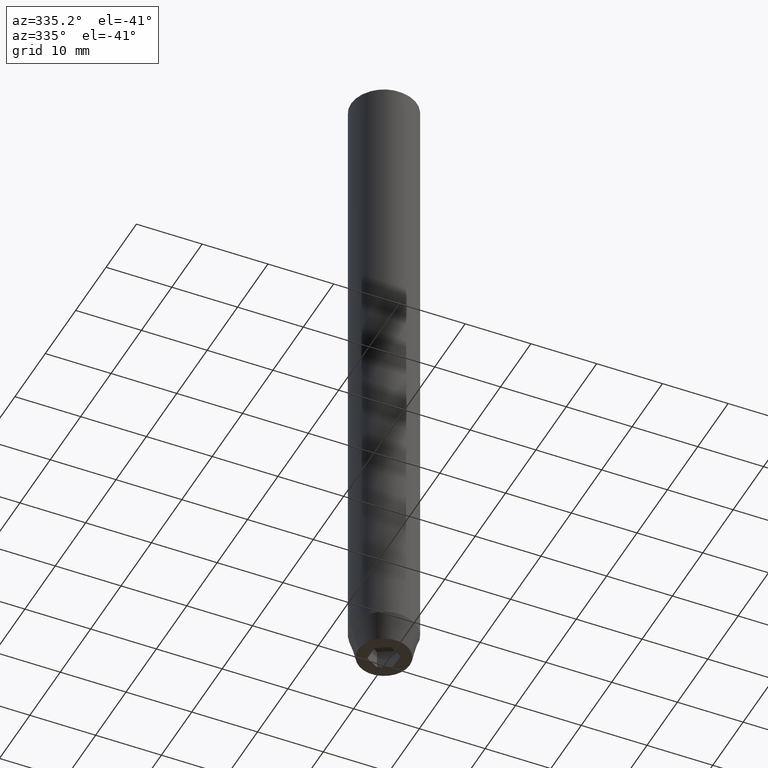
[diagram: clean part render]
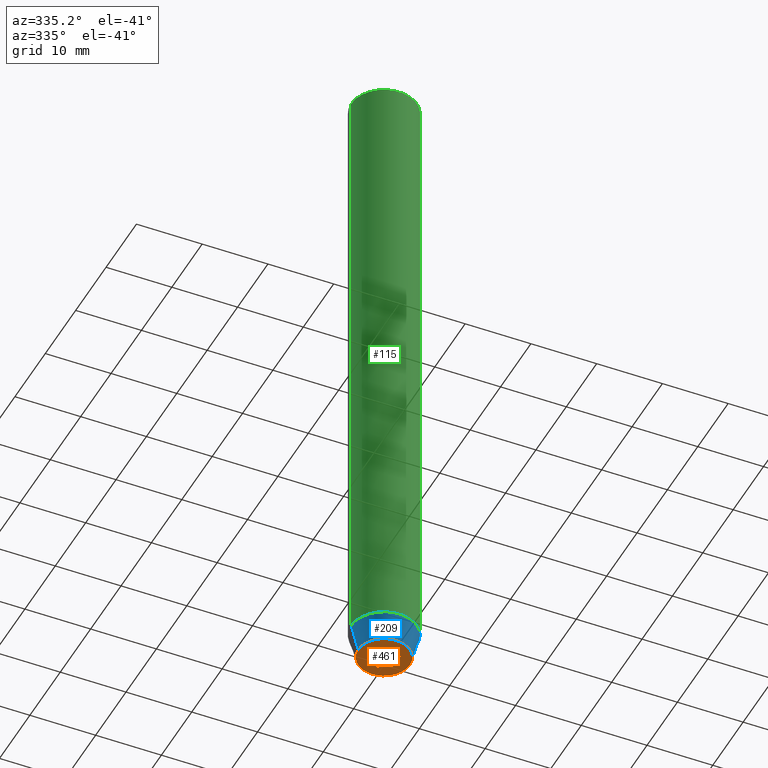
[diagram: same view with three faces highlighted in distinct colors, each labeled with its STEP entity id]
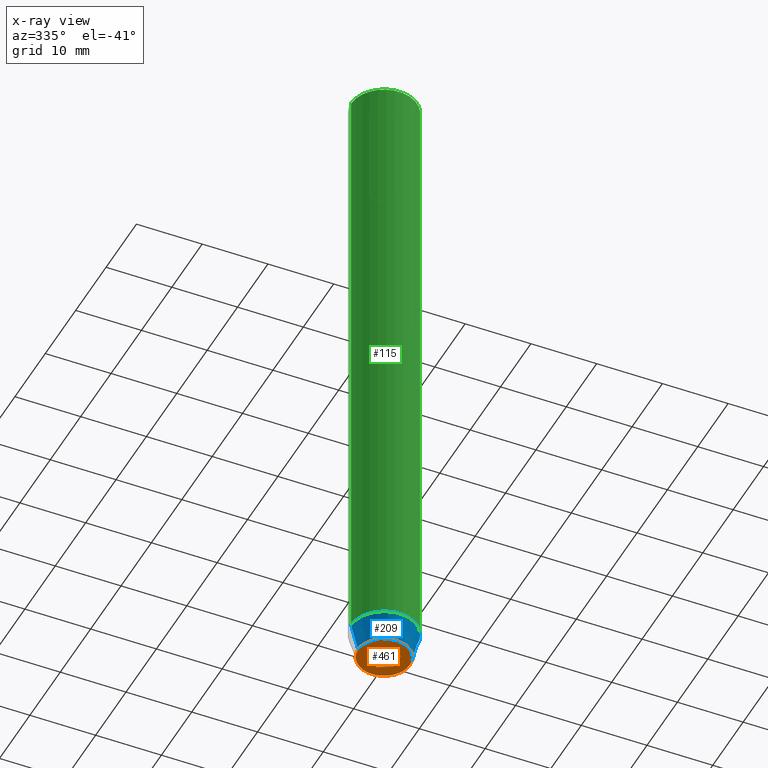
[diagram: x-ray of the same camera — body ghosted, the three highlighted faces saturated]
A machine part, auxiliary view with three faces highlighted in distinct colors.
The next image is the same camera in x-ray (body ghosted, the three faces saturated) — at least one of them is partly hidden behind the body in this view.
Their STEP definitions:

[orange] entity #461 — the highlighted planar face has unit normal (0, 0, -1).
#15 = EDGE_CURVE ( 'NONE', #587, #43, #141, .T. ) ;
#35 = VECTOR ( 'NONE', #37, 1000.000000000000000 ) ;
#37 = DIRECTION ( 'NONE',  ( 5.633679745264339711E-16, 1.000000000000000000, 0.000000000000000000 ) ) ;
#43 = VERTEX_POINT ( 'NONE', #534 ) ;
#46 = VECTOR ( 'NONE', #454, 999.9999999999998863 ) ;
#54 = DIRECTION ( 'NONE',  ( 0.000000000000000000, 0.000000000000000000, -1.000000000000000000 ) ) ;
#75 = CIRCLE ( 'NONE', #586, 3.928203230275506996 ) ;
#80 = ORIENTED_EDGE ( 'NONE', *, *, #15, .F. ) ;
#86 = EDGE_CURVE ( 'NONE', #416, #412, #214, .T. ) ;
#103 = ORIENTED_EDGE ( 'NONE', *, *, #514, .F. ) ;
#114 = VERTEX_POINT ( 'NONE', #130 ) ;
#128 = EDGE_CURVE ( 'NONE', #355, #416, #224, .T. ) ;
#130 = CARTESIAN_POINT ( 'NONE',  ( 0.000000000000000000, 2.309401076758503812, -100.0000000000000000 ) ) ;
#132 = CARTESIAN_POINT ( 'NONE',  ( -1.999999999999997780, 1.154700538379253238, -100.0000000000000000 ) ) ;
#141 = CIRCLE ( 'NONE', #471, 3.928203230275506996 ) ;
#145 = DIRECTION ( 'NONE',  ( -1.000000000000000000, 0.000000000000000000, -0.000000000000000000 ) ) ;
#155 = EDGE_CURVE ( 'NONE', #573, #114, #323, .T. ) ;
#156 = CARTESIAN_POINT ( 'NONE',  ( -1.999999999999998668, -1.154700538379252572, -100.0000000000000000 ) ) ;
#168 = LINE ( 'NONE', #498, #273 ) ;
#170 = AXIS2_PLACEMENT_3D ( 'NONE', #340, #54, #145 ) ;
#184 = DIRECTION ( 'NONE',  ( 0.8660254037844385966, -0.5000000000000001110, 0.000000000000000000 ) ) ;
#214 = LINE ( 'NONE', #487, #314 ) ;
#218 = LINE ( 'NONE', #502, #46 ) ;
#224 = LINE ( 'NONE', #584, #363 ) ;
#241 = DIRECTION ( 'NONE',  ( 1.000000000000000000, 0.000000000000000000, 0.000000000000000000 ) ) ;
#244 = DIRECTION ( 'NONE',  ( 1.000000000000000000, 0.000000000000000000, 0.000000000000000000 ) ) ;
#273 = VECTOR ( 'NONE', #184, 1000.000000000000000 ) ;
#276 = CARTESIAN_POINT ( 'NONE',  ( -1.000000000000000444, 1.732050807568877637, -100.0000000000000000 ) ) ;
#288 = CARTESIAN_POINT ( 'NONE',  ( 0.000000000000000000, 0.000000000000000000, -100.0000000000000000 ) ) ;
#304 = ORIENTED_EDGE ( 'NONE', *, *, #128, .F. ) ;
#310 = EDGE_LOOP ( 'NONE', ( #80, #103 ) ) ;
#314 = VECTOR ( 'NONE', #351, 1000.000000000000114 ) ;
#323 = LINE ( 'NONE', #276, #415 ) ;
#340 = CARTESIAN_POINT ( 'NONE',  ( 0.000000000000000000, 3.928203230275506996, -100.0000000000000000 ) ) ;
#349 = CARTESIAN_POINT ( 'NONE',  ( 3.928203230275506996, 0.000000000000000000, -100.0000000000000000 ) ) ;
#350 = EDGE_CURVE ( 'NONE', #114, #355, #168, .T. ) ;
#351 = DIRECTION ( 'NONE',  ( -0.8660254037844388186, -0.4999999999999996114, 0.000000000000000000 ) ) ;
#355 = VERTEX_POINT ( 'NONE', #402 ) ;
#356 = CARTESIAN_POINT ( 'NONE',  ( -1.999999999999998224, 1.126735949052866956E-15, -100.0000000000000000 ) ) ;
#363 = VECTOR ( 'NONE', #389, 1000.000000000000000 ) ;
#370 = ORIENTED_EDGE ( 'NONE', *, *, #350, .F. ) ;
#386 = EDGE_CURVE ( 'NONE', #481, #573, #410, .T. ) ;
#389 = DIRECTION ( 'NONE',  ( 0.000000000000000000, -1.000000000000000000, 0.000000000000000000 ) ) ;
#402 = CARTESIAN_POINT ( 'NONE',  ( 2.000000000000000888, 1.154700538379251462, -100.0000000000000000 ) ) ;
#410 = LINE ( 'NONE', #356, #35 ) ;
#412 = VERTEX_POINT ( 'NONE', #551 ) ;
#415 = VECTOR ( 'NONE', #512, 1000.000000000000000 ) ;
#416 = VERTEX_POINT ( 'NONE', #559 ) ;
#451 = PLANE ( 'NONE',  #170 ) ;
#454 = DIRECTION ( 'NONE',  ( -0.8660254037844387076, 0.5000000000000001110, 0.000000000000000000 ) ) ;
#461 = ADVANCED_FACE ( 'NONE', ( #583, #507 ), #451, .T. ) ;
#471 = AXIS2_PLACEMENT_3D ( 'NONE', #474, #531, #244 ) ;
#474 = CARTESIAN_POINT ( 'NONE',  ( 0.000000000000000000, 0.000000000000000000, -100.0000000000000000 ) ) ;
#475 = ORIENTED_EDGE ( 'NONE', *, *, #155, .F. ) ;
#477 = EDGE_CURVE ( 'NONE', #412, #481, #218, .T. ) ;
#481 = VERTEX_POINT ( 'NONE', #156 ) ;
#487 = CARTESIAN_POINT ( 'NONE',  ( 0.9999999999999997780, -1.732050807568878747, -100.0000000000000000 ) ) ;
#493 = EDGE_LOOP ( 'NONE', ( #475, #553, #535, #566, #304, #370 ) ) ;
#498 = CARTESIAN_POINT ( 'NONE',  ( 1.000000000000000444, 1.732050807568877637, -100.0000000000000000 ) ) ;
#502 = CARTESIAN_POINT ( 'NONE',  ( -1.000000000000000222, -1.732050807568877637, -100.0000000000000000 ) ) ;
#507 = FACE_OUTER_BOUND ( 'NONE', #310, .T. ) ;
#512 = DIRECTION ( 'NONE',  ( 0.8660254037844385966, 0.5000000000000001110, 0.000000000000000000 ) ) ;
#514 = EDGE_CURVE ( 'NONE', #43, #587, #75, .T. ) ;
#524 = DIRECTION ( 'NONE',  ( -0.000000000000000000, -0.000000000000000000, 1.000000000000000000 ) ) ;
#531 = DIRECTION ( 'NONE',  ( -0.000000000000000000, -0.000000000000000000, 1.000000000000000000 ) ) ;
#534 = CARTESIAN_POINT ( 'NONE',  ( -3.928203230275506996, 5.466947754046979141E-16, -100.0000000000000000 ) ) ;
#535 = ORIENTED_EDGE ( 'NONE', *, *, #477, .F. ) ;
#551 = CARTESIAN_POINT ( 'NONE',  ( 2.168404344971008868E-16, -2.309401076758503812, -100.0000000000000000 ) ) ;
#553 = ORIENTED_EDGE ( 'NONE', *, *, #386, .F. ) ;
#559 = CARTESIAN_POINT ( 'NONE',  ( 2.000000000000000888, -1.154700538379252572, -100.0000000000000000 ) ) ;
#566 = ORIENTED_EDGE ( 'NONE', *, *, #86, .F. ) ;
#573 = VERTEX_POINT ( 'NONE', #132 ) ;
#583 = FACE_BOUND ( 'NONE', #493, .T. ) ;
#584 = CARTESIAN_POINT ( 'NONE',  ( 2.000000000000000888, 0.000000000000000000, -100.0000000000000000 ) ) ;
#586 = AXIS2_PLACEMENT_3D ( 'NONE', #288, #524, #241 ) ;
#587 = VERTEX_POINT ( 'NONE', #349 ) ;

[blue] entity #209 — the highlighted conical surface has half-angle 15 deg.
#10 = DIRECTION ( 'NONE',  ( -0.000000000000000000, -0.000000000000000000, 1.000000000000000000 ) ) ;
#34 = DIRECTION ( 'NONE',  ( 1.000000000000000000, 0.000000000000000000, 0.000000000000000000 ) ) ;
#43 = VERTEX_POINT ( 'NONE', #534 ) ;
#45 = CARTESIAN_POINT ( 'NONE',  ( 5.000000000000000000, 0.000000000000000000, -96.00000000000000000 ) ) ;
#61 = EDGE_CURVE ( 'NONE', #43, #163, #347, .T. ) ;
#64 = VECTOR ( 'NONE', #93, 1000.000000000000114 ) ;
#71 = VERTEX_POINT ( 'NONE', #45 ) ;
#75 = CIRCLE ( 'NONE', #586, 3.928203230275506996 ) ;
#91 = CARTESIAN_POINT ( 'NONE',  ( 0.000000000000000000, 0.000000000000000000, -96.00000000000000000 ) ) ;
#93 = DIRECTION ( 'NONE',  ( -0.2588190451025210725, 3.169619151431769255E-17, 0.9659258262890680902 ) ) ;
#160 = VECTOR ( 'NONE', #385, 1000.000000000000114 ) ;
#163 = VERTEX_POINT ( 'NONE', #518 ) ;
#171 = AXIS2_PLACEMENT_3D ( 'NONE', #294, #243, #34 ) ;
#177 = CARTESIAN_POINT ( 'NONE',  ( -5.000000000000000000, 6.123233995736766282E-16, -96.00000000000000000 ) ) ;
#185 = EDGE_CURVE ( 'NONE', #587, #71, #206, .T. ) ;
#202 = EDGE_LOOP ( 'NONE', ( #300, #319, #283, #460 ) ) ;
#206 = LINE ( 'NONE', #431, #160 ) ;
#209 = ADVANCED_FACE ( 'NONE', ( #479 ), #343, .T. ) ;
#216 = AXIS2_PLACEMENT_3D ( 'NONE', #91, #10, #490 ) ;
#241 = DIRECTION ( 'NONE',  ( 1.000000000000000000, 0.000000000000000000, 0.000000000000000000 ) ) ;
#243 = DIRECTION ( 'NONE',  ( -0.000000000000000000, -0.000000000000000000, 1.000000000000000000 ) ) ;
#283 = ORIENTED_EDGE ( 'NONE', *, *, #185, .T. ) ;
#288 = CARTESIAN_POINT ( 'NONE',  ( 0.000000000000000000, 0.000000000000000000, -100.0000000000000000 ) ) ;
#294 = CARTESIAN_POINT ( 'NONE',  ( 0.000000000000000000, 0.000000000000000000, -96.00000000000000000 ) ) ;
#300 = ORIENTED_EDGE ( 'NONE', *, *, #61, .F. ) ;
#316 = CIRCLE ( 'NONE', #216, 5.000000000000000000 ) ;
#319 = ORIENTED_EDGE ( 'NONE', *, *, #514, .T. ) ;
#343 = CONICAL_SURFACE ( 'NONE', #171, 5.000000000000000000, 0.2617993877991497964 ) ;
#347 = LINE ( 'NONE', #177, #64 ) ;
#349 = CARTESIAN_POINT ( 'NONE',  ( 3.928203230275506996, 0.000000000000000000, -100.0000000000000000 ) ) ;
#385 = DIRECTION ( 'NONE',  ( 0.2588190451025210725, 0.000000000000000000, 0.9659258262890680902 ) ) ;
#431 = CARTESIAN_POINT ( 'NONE',  ( 5.000000000000000000, 0.000000000000000000, -96.00000000000000000 ) ) ;
#460 = ORIENTED_EDGE ( 'NONE', *, *, #529, .F. ) ;
#479 = FACE_OUTER_BOUND ( 'NONE', #202, .T. ) ;
#490 = DIRECTION ( 'NONE',  ( 1.000000000000000000, 0.000000000000000000, 0.000000000000000000 ) ) ;
#514 = EDGE_CURVE ( 'NONE', #43, #587, #75, .T. ) ;
#518 = CARTESIAN_POINT ( 'NONE',  ( -5.000000000000000000, 6.123233995736766282E-16, -96.00000000000000000 ) ) ;
#524 = DIRECTION ( 'NONE',  ( -0.000000000000000000, -0.000000000000000000, 1.000000000000000000 ) ) ;
#529 = EDGE_CURVE ( 'NONE', #163, #71, #316, .T. ) ;
#534 = CARTESIAN_POINT ( 'NONE',  ( -3.928203230275506996, 5.466947754046979141E-16, -100.0000000000000000 ) ) ;
#586 = AXIS2_PLACEMENT_3D ( 'NONE', #288, #524, #241 ) ;
#587 = VERTEX_POINT ( 'NONE', #349 ) ;

[green] entity #115 — the highlighted cylindrical surface (edge-blend (fillet) strip) has radius 5 mm, axis along (-0, -0, 1).
#3 = CARTESIAN_POINT ( 'NONE',  ( 5.000000000000000000, 0.000000000000000000, 0.000000000000000000 ) ) ;
#4 = EDGE_LOOP ( 'NONE', ( #151, #197, #271, #32 ) ) ;
#10 = DIRECTION ( 'NONE',  ( -0.000000000000000000, -0.000000000000000000, 1.000000000000000000 ) ) ;
#32 = ORIENTED_EDGE ( 'NONE', *, *, #269, .T. ) ;
#45 = CARTESIAN_POINT ( 'NONE',  ( 5.000000000000000000, 0.000000000000000000, -96.00000000000000000 ) ) ;
#48 = LINE ( 'NONE', #3, #492 ) ;
#50 = EDGE_CURVE ( 'NONE', #71, #538, #48, .T. ) ;
#52 = CYLINDRICAL_SURFACE ( 'NONE', #298, 5.000000000000000000 ) ;
#55 = DIRECTION ( 'NONE',  ( -0.000000000000000000, -0.000000000000000000, 1.000000000000000000 ) ) ;
#71 = VERTEX_POINT ( 'NONE', #45 ) ;
#90 = DIRECTION ( 'NONE',  ( 1.000000000000000000, 0.000000000000000000, 0.000000000000000000 ) ) ;
#91 = CARTESIAN_POINT ( 'NONE',  ( 0.000000000000000000, 0.000000000000000000, -96.00000000000000000 ) ) ;
#115 = ADVANCED_FACE ( 'NONE', ( #542 ), #52, .T. ) ;
#119 = DIRECTION ( 'NONE',  ( 0.000000000000000000, 0.000000000000000000, -1.000000000000000000 ) ) ;
#151 = ORIENTED_EDGE ( 'NONE', *, *, #491, .F. ) ;
#163 = VERTEX_POINT ( 'NONE', #518 ) ;
#174 = CARTESIAN_POINT ( 'NONE',  ( 0.000000000000000000, 0.000000000000000000, 0.000000000000000000 ) ) ;
#175 = CARTESIAN_POINT ( 'NONE',  ( 5.000000000000000000, 0.000000000000000000, -0.4999999999999857891 ) ) ;
#183 = VERTEX_POINT ( 'NONE', #279 ) ;
#197 = ORIENTED_EDGE ( 'NONE', *, *, #529, .T. ) ;
#216 = AXIS2_PLACEMENT_3D ( 'NONE', #91, #10, #490 ) ;
#233 = LINE ( 'NONE', #564, #485 ) ;
#269 = EDGE_CURVE ( 'NONE', #538, #183, #494, .T. ) ;
#271 = ORIENTED_EDGE ( 'NONE', *, *, #50, .T. ) ;
#279 = CARTESIAN_POINT ( 'NONE',  ( -5.000000000000000000, 6.123233995736766282E-16, -0.4999999999999857891 ) ) ;
#298 = AXIS2_PLACEMENT_3D ( 'NONE', #174, #488, #90 ) ;
#316 = CIRCLE ( 'NONE', #216, 5.000000000000000000 ) ;
#426 = CARTESIAN_POINT ( 'NONE',  ( 0.000000000000000000, 0.000000000000000000, -0.4999999999999857891 ) ) ;
#472 = DIRECTION ( 'NONE',  ( 1.000000000000000000, 0.000000000000000000, 0.000000000000000000 ) ) ;
#485 = VECTOR ( 'NONE', #516, 1000.000000000000000 ) ;
#488 = DIRECTION ( 'NONE',  ( -0.000000000000000000, -0.000000000000000000, 1.000000000000000000 ) ) ;
#490 = DIRECTION ( 'NONE',  ( 1.000000000000000000, 0.000000000000000000, 0.000000000000000000 ) ) ;
#491 = EDGE_CURVE ( 'NONE', #163, #183, #233, .T. ) ;
#492 = VECTOR ( 'NONE', #55, 1000.000000000000000 ) ;
#494 = CIRCLE ( 'NONE', #547, 5.000000000000000000 ) ;
#516 = DIRECTION ( 'NONE',  ( -0.000000000000000000, -0.000000000000000000, 1.000000000000000000 ) ) ;
#518 = CARTESIAN_POINT ( 'NONE',  ( -5.000000000000000000, 6.123233995736766282E-16, -96.00000000000000000 ) ) ;
#529 = EDGE_CURVE ( 'NONE', #163, #71, #316, .T. ) ;
#538 = VERTEX_POINT ( 'NONE', #175 ) ;
#542 = FACE_OUTER_BOUND ( 'NONE', #4, .T. ) ;
#547 = AXIS2_PLACEMENT_3D ( 'NONE', #426, #119, #472 ) ;
#564 = CARTESIAN_POINT ( 'NONE',  ( -5.000000000000000000, 6.123233995736766282E-16, 0.000000000000000000 ) ) ;